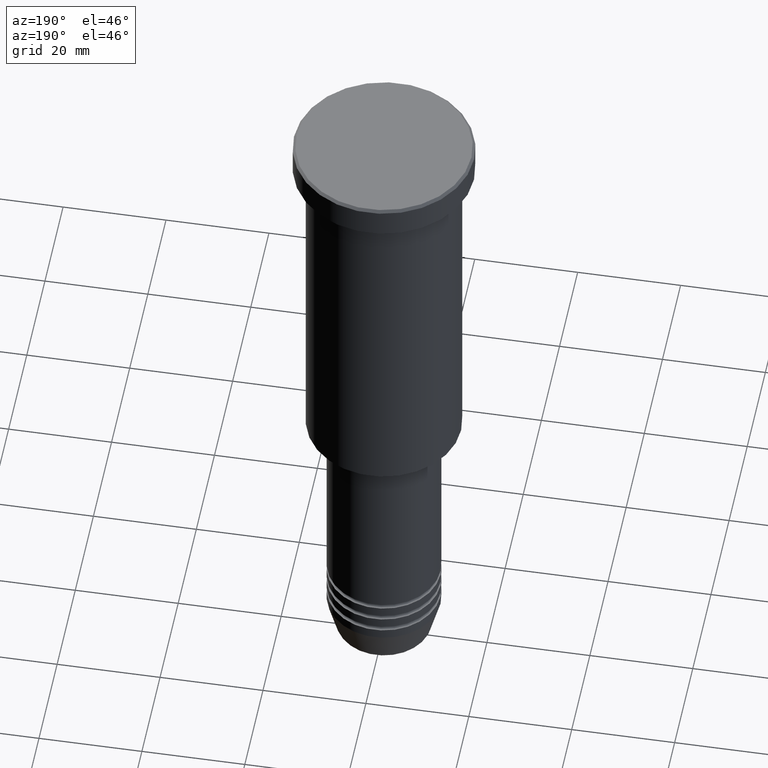
[diagram: clean part render]
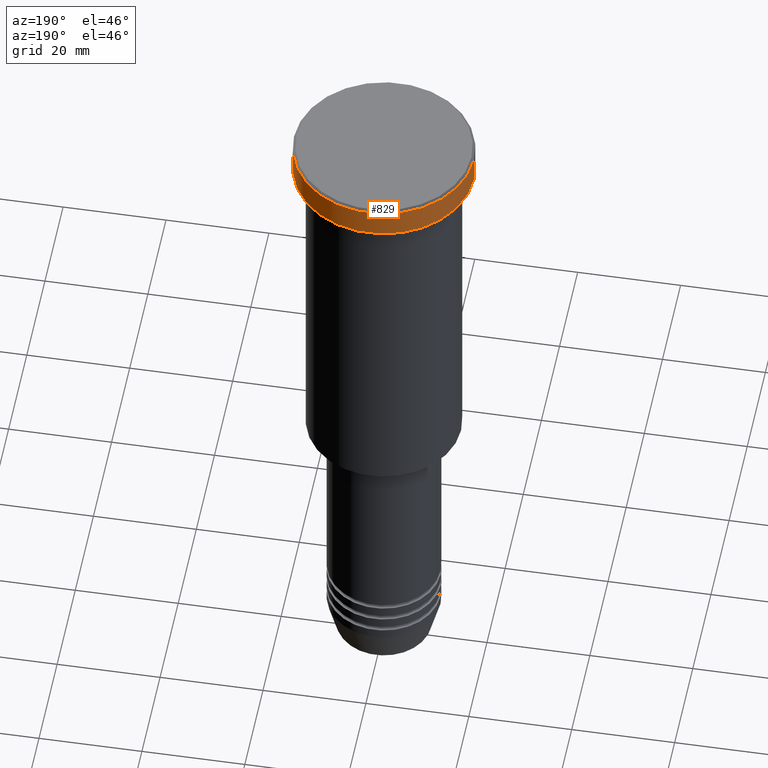
[diagram: same view with one face highlighted and labeled with its STEP entity id]
A machine part, auxiliary view. The second image highlights one B-rep face of the part: STEP entity #829.
In plain terms, the highlighted cylindrical surface (partial cylindrical patch) has radius 17.5 mm, axis along (-0, -0, 1).
Its self-contained STEP definition (entity closure, byte-faithful):
#9 = CIRCLE ( 'NONE', #308, 17.50000000000000000 ) ;
#38 = LINE ( 'NONE', #1124, #324 ) ;
#66 = CIRCLE ( 'NONE', #987, 17.50000000000000000 ) ;
#112 = ORIENTED_EDGE ( 'NONE', *, *, #332, .T. ) ;
#216 = CARTESIAN_POINT ( 'NONE',  ( 0.000000000000000000, 0.000000000000000000, 0.000000000000000000 ) ) ;
#235 = CARTESIAN_POINT ( 'NONE',  ( 0.000000000000000000, 0.000000000000000000, -5.999999999999995559 ) ) ;
#236 = LINE ( 'NONE', #322, #594 ) ;
#285 = ORIENTED_EDGE ( 'NONE', *, *, #320, .F. ) ;
#308 = AXIS2_PLACEMENT_3D ( 'NONE', #500, #321, #686 ) ;
#317 = EDGE_CURVE ( 'NONE', #1006, #812, #9, .T. ) ;
#320 = EDGE_CURVE ( 'NONE', #1076, #812, #38, .T. ) ;
#321 = DIRECTION ( 'NONE',  ( 0.000000000000000000, 0.000000000000000000, -1.000000000000000000 ) ) ;
#322 = CARTESIAN_POINT ( 'NONE',  ( -17.50000000000000000, 2.143131898507868248E-15, 0.000000000000000000 ) ) ;
#324 = VECTOR ( 'NONE', #1042, 1000.000000000000000 ) ;
#332 = EDGE_CURVE ( 'NONE', #1076, #836, #66, .T. ) ;
#333 = DIRECTION ( 'NONE',  ( -0.000000000000000000, -0.000000000000000000, 1.000000000000000000 ) ) ;
#414 = CARTESIAN_POINT ( 'NONE',  ( 17.50000000000000000, 0.000000000000000000, -5.999999999999995559 ) ) ;
#487 = DIRECTION ( 'NONE',  ( -0.000000000000000000, -0.000000000000000000, 1.000000000000000000 ) ) ;
#498 = AXIS2_PLACEMENT_3D ( 'NONE', #216, #487, #805 ) ;
#500 = CARTESIAN_POINT ( 'NONE',  ( 0.000000000000000000, 0.000000000000000000, -0.5000000000000003331 ) ) ;
#510 = ORIENTED_EDGE ( 'NONE', *, *, #317, .T. ) ;
#549 = CARTESIAN_POINT ( 'NONE',  ( 17.50000000000000000, 0.000000000000000000, -0.5000000000000003331 ) ) ;
#594 = VECTOR ( 'NONE', #1141, 1000.000000000000000 ) ;
#597 = DIRECTION ( 'NONE',  ( 1.000000000000000000, 0.000000000000000000, 0.000000000000000000 ) ) ;
#686 = DIRECTION ( 'NONE',  ( 1.000000000000000000, 0.000000000000000000, 0.000000000000000000 ) ) ;
#699 = CARTESIAN_POINT ( 'NONE',  ( -17.50000000000000000, 2.143131898507868248E-15, -0.5000000000000003331 ) ) ;
#805 = DIRECTION ( 'NONE',  ( 1.000000000000000000, 0.000000000000000000, 0.000000000000000000 ) ) ;
#812 = VERTEX_POINT ( 'NONE', #549 ) ;
#816 = FACE_OUTER_BOUND ( 'NONE', #1031, .T. ) ;
#829 = ADVANCED_FACE ( 'NONE', ( #816 ), #1178, .T. ) ;
#836 = VERTEX_POINT ( 'NONE', #1052 ) ;
#987 = AXIS2_PLACEMENT_3D ( 'NONE', #235, #333, #597 ) ;
#1006 = VERTEX_POINT ( 'NONE', #699 ) ;
#1031 = EDGE_LOOP ( 'NONE', ( #112, #1174, #510, #285 ) ) ;
#1042 = DIRECTION ( 'NONE',  ( -0.000000000000000000, -0.000000000000000000, 1.000000000000000000 ) ) ;
#1052 = CARTESIAN_POINT ( 'NONE',  ( -17.50000000000000000, 2.143131898507868248E-15, -5.999999999999995559 ) ) ;
#1065 = EDGE_CURVE ( 'NONE', #836, #1006, #236, .T. ) ;
#1076 = VERTEX_POINT ( 'NONE', #414 ) ;
#1124 = CARTESIAN_POINT ( 'NONE',  ( 17.50000000000000000, 0.000000000000000000, 0.000000000000000000 ) ) ;
#1141 = DIRECTION ( 'NONE',  ( -0.000000000000000000, -0.000000000000000000, 1.000000000000000000 ) ) ;
#1174 = ORIENTED_EDGE ( 'NONE', *, *, #1065, .T. ) ;
#1178 = CYLINDRICAL_SURFACE ( 'NONE', #498, 17.50000000000000000 ) ;